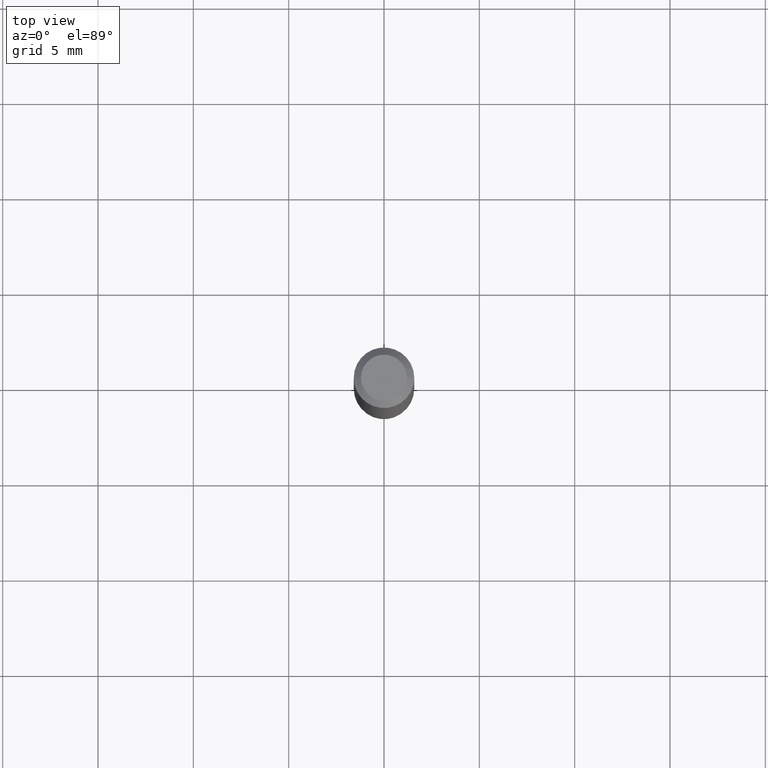
[diagram: clean part render]
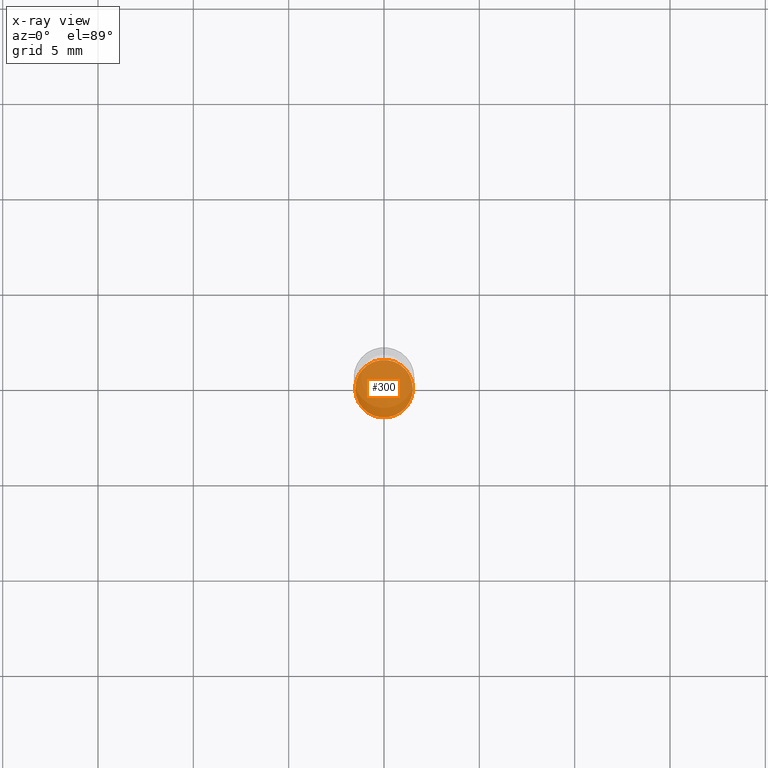
[diagram: x-ray — body ghosted, one internal face saturated and labeled with its STEP entity id]
A machine part, top view, then the same camera in x-ray: the body is ghosted and one INTERNAL B-rep face — a face not visible from any outside direction — is saturated and labeled: STEP entity #300.
In plain terms, the highlighted planar face has unit normal (-0, 0, 1).
Its self-contained STEP definition (entity closure, byte-faithful):
#51 = CIRCLE ( 'NONE', #391, 0.05950000000000001815 ) ;
#67 = ORIENTED_EDGE ( 'NONE', *, *, #458, .F. ) ;
#79 = CARTESIAN_POINT ( 'NONE',  ( 3.228018824164380442E-29, -4.608755367272952437E-15, -1.320000000000000062 ) ) ;
#91 = CARTESIAN_POINT ( 'NONE',  ( 3.228018824164380442E-29, -4.608755367272952437E-15, -1.320000000000000062 ) ) ;
#131 = AXIS2_PLACEMENT_3D ( 'NONE', #295, #262, #183 ) ;
#149 = VERTEX_POINT ( 'NONE', #489 ) ;
#177 = EDGE_CURVE ( 'NONE', #149, #499, #355, .T. ) ;
#183 = DIRECTION ( 'NONE',  ( 1.000000000000000000, -6.982962677686265922E-15, 4.876176775795935793E-29 ) ) ;
#208 = CARTESIAN_POINT ( 'NONE',  ( 0.05950000000000001815, -5.024241646595286064E-15, -1.320000000000000062 ) ) ;
#239 = DIRECTION ( 'NONE',  ( -2.445468806185136597E-29, 3.491481338843145583E-15, 1.000000000000000000 ) ) ;
#252 = DIRECTION ( 'NONE',  ( -2.445468806185136597E-29, 3.491481338843145583E-15, 1.000000000000000000 ) ) ;
#262 = DIRECTION ( 'NONE',  ( -2.438088387897960049E-29, 3.491481338843145188E-15, 1.000000000000000000 ) ) ;
#294 = ORIENTED_EDGE ( 'NONE', *, *, #177, .F. ) ;
#295 = CARTESIAN_POINT ( 'NONE',  ( 3.228018824164380442E-29, -4.608755367272952437E-15, -1.320000000000000062 ) ) ;
#300 = ADVANCED_FACE ( 'NONE', ( #495 ), #506, .F. ) ;
#355 = CIRCLE ( 'NONE', #433, 0.05950000000000001815 ) ;
#391 = AXIS2_PLACEMENT_3D ( 'NONE', #79, #239, #398 ) ;
#398 = DIRECTION ( 'NONE',  ( 1.000000000000000000, -6.982962677686273810E-15, 0.000000000000000000 ) ) ;
#409 = DIRECTION ( 'NONE',  ( 1.000000000000000000, -6.982962677686273810E-15, 0.000000000000000000 ) ) ;
#422 = EDGE_LOOP ( 'NONE', ( #67, #294 ) ) ;
#433 = AXIS2_PLACEMENT_3D ( 'NONE', #91, #252, #409 ) ;
#458 = EDGE_CURVE ( 'NONE', #499, #149, #51, .T. ) ;
#489 = CARTESIAN_POINT ( 'NONE',  ( -0.05950000000000001815, -4.183333212321581645E-15, -1.320000000000000062 ) ) ;
#495 = FACE_OUTER_BOUND ( 'NONE', #422, .T. ) ;
#499 = VERTEX_POINT ( 'NONE', #208 ) ;
#506 = PLANE ( 'NONE',  #131 ) ;